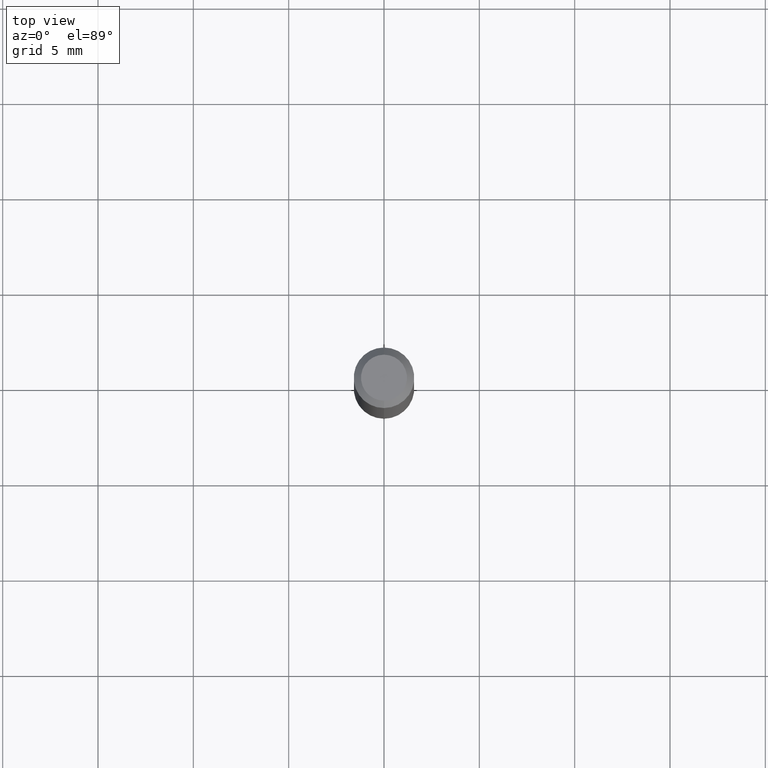
[diagram: clean part render]
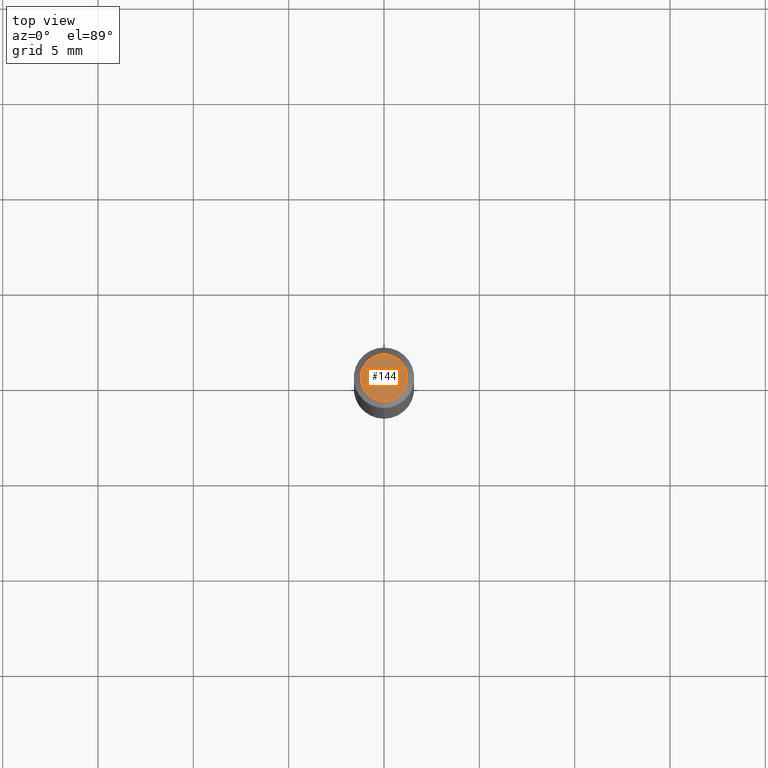
[diagram: same view with one face highlighted and labeled with its STEP entity id]
A machine part, top view. The second image highlights one B-rep face of the part: STEP entity #144.
In plain terms, the highlighted planar face has unit normal (0, -0, -1).
Its self-contained STEP definition (entity closure, byte-faithful):
#10 = DIRECTION ( 'NONE',  ( -2.445478890525876859E-29, 3.491466897493240330E-15, 1.000000000000000000 ) ) ;
#28 = ORIENTED_EDGE ( 'NONE', *, *, #37, .T. ) ;
#37 = EDGE_CURVE ( 'NONE', #274, #183, #137, .T. ) ;
#40 = PLANE ( 'NONE',  #194 ) ;
#51 = CARTESIAN_POINT ( 'NONE',  ( 2.166940203591214457E-46, -3.093790757710868312E-32, -8.861005555951596443E-18 ) ) ;
#57 = DIRECTION ( 'NONE',  ( -6.982962677686266711E-15, -1.000000000000000000, 3.491466897493240724E-15 ) ) ;
#93 = CARTESIAN_POINT ( 'NONE',  ( 2.166940203591214457E-46, -3.093790757710868312E-32, -8.861005555951596443E-18 ) ) ;
#120 = DIRECTION ( 'NONE',  ( 6.982962677686265922E-15, 1.000000000000000000, -3.491466897493240330E-15 ) ) ;
#137 = CIRCLE ( 'NONE', #303, 0.04749999999999999362 ) ;
#144 = ADVANCED_FACE ( 'NONE', ( #395 ), #40, .F. ) ;
#157 = DIRECTION ( 'NONE',  ( 2.445478890525876579E-29, -3.491466897493240330E-15, -1.000000000000000000 ) ) ;
#183 = VERTEX_POINT ( 'NONE', #388 ) ;
#194 = AXIS2_PLACEMENT_3D ( 'NONE', #307, #157, #120 ) ;
#209 = DIRECTION ( 'NONE',  ( -6.982962677686266711E-15, -1.000000000000000000, 3.491466897493240724E-15 ) ) ;
#215 = ORIENTED_EDGE ( 'NONE', *, *, #243, .T. ) ;
#237 = CARTESIAN_POINT ( 'NONE',  ( -3.773273898774340269E-16, -0.04749999999999999362, 1.569836720749773177E-16 ) ) ;
#243 = EDGE_CURVE ( 'NONE', #183, #274, #493, .T. ) ;
#274 = VERTEX_POINT ( 'NONE', #237 ) ;
#303 = AXIS2_PLACEMENT_3D ( 'NONE', #51, #321, #209 ) ;
#307 = CARTESIAN_POINT ( 'NONE',  ( 3.316907271900976096E-16, 0.04749999999999999362, -1.702751804089047023E-16 ) ) ;
#321 = DIRECTION ( 'NONE',  ( -2.445478890525876859E-29, 3.491466897493240330E-15, 1.000000000000000000 ) ) ;
#359 = AXIS2_PLACEMENT_3D ( 'NONE', #93, #10, #57 ) ;
#375 = EDGE_LOOP ( 'NONE', ( #215, #28 ) ) ;
#388 = CARTESIAN_POINT ( 'NONE',  ( 3.840629472727447874E-16, 0.04749999999999999362, -1.747056831868805136E-16 ) ) ;
#395 = FACE_OUTER_BOUND ( 'NONE', #375, .T. ) ;
#493 = CIRCLE ( 'NONE', #359, 0.04749999999999999362 ) ;